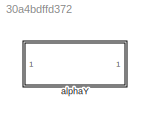
MODEL slx_30a4bdffd372
KIND library
CONFIG AbsTol = auto
CONFIG EnableMultiTasking = off
CONFIG FixedStep = auto
CONFIG MaxStep = auto
CONFIG MinStep = auto
CONFIG RelTol = 1e-3
CONFIG SampleTimeConstraint = Unconstrained
CONFIG Solver = VariableStepAuto
CONFIG SolverName = VariableStepAuto
CONFIG StartTime = 0.0
CONFIG StopTime = 10.0
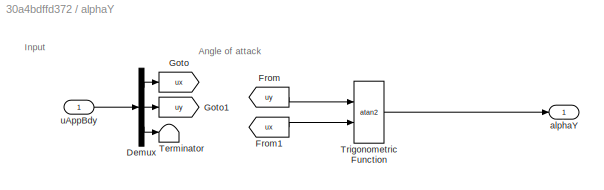
BLOCK [SubSystem] alphaY
  MinAlgLoopOccurrences = on
  Ports = [1, 1]
  RequestExecContextInheritance = off
  TreatAsAtomicUnit = on
BLOCK [Demux] alphaY/Demux
  Outputs = 3
  Ports = [1, 3]
BLOCK [From] alphaY/From
  GotoTag = uy
BLOCK [From] alphaY/From1
  GotoTag = ux
BLOCK [Goto] alphaY/Goto
  GotoTag = ux
BLOCK [Goto] alphaY/Goto1
  GotoTag = uy
BLOCK [Terminator] alphaY/Terminator
BLOCK [Trigonometry] alphaY/Trigonometric Function
  Operator = atan2
  Ports = [2, 1]
BLOCK [Outport] alphaY/alphaY
  VectorParamsAs1DForOutWhenUnconnected = off
BLOCK [Inport] alphaY/uAppBdy
ANNOTATION alphaY: Angle of attack
ANNOTATION alphaY: Input
LINE alphaY/Demux:1 -> alphaY/Goto:1
LINE alphaY/Demux:2 -> alphaY/Goto1:1
LINE alphaY/Demux:3 -> alphaY/Terminator:1
LINE alphaY/From1:1 -> alphaY/Trigonometric Function:2
LINE alphaY/From:1 -> alphaY/Trigonometric Function:1
LINE alphaY/Trigonometric Function:1 -> alphaY/alphaY:1
LINE alphaY/uAppBdy:1 -> alphaY/Demux:1
